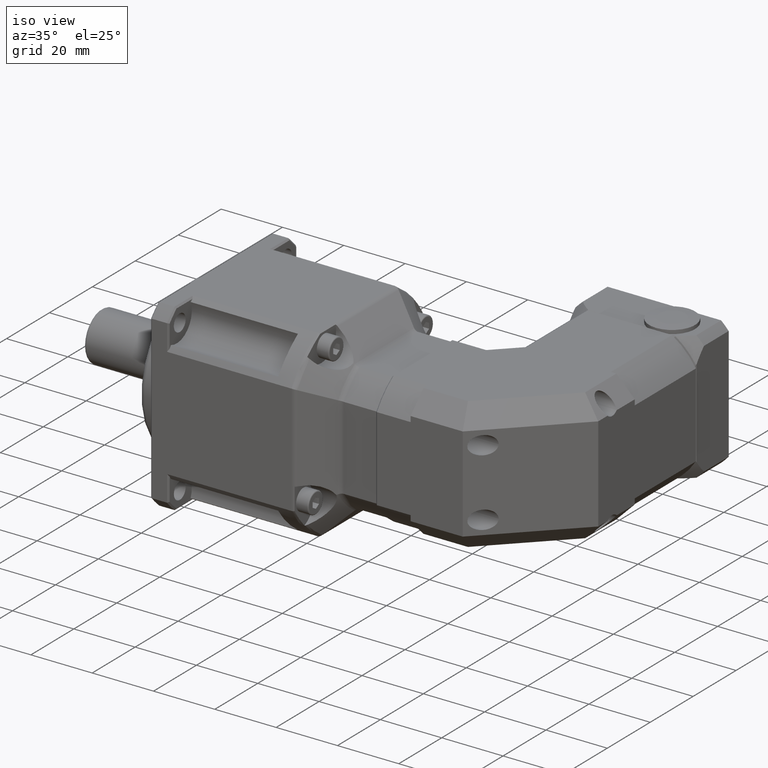
[diagram: clean part render]
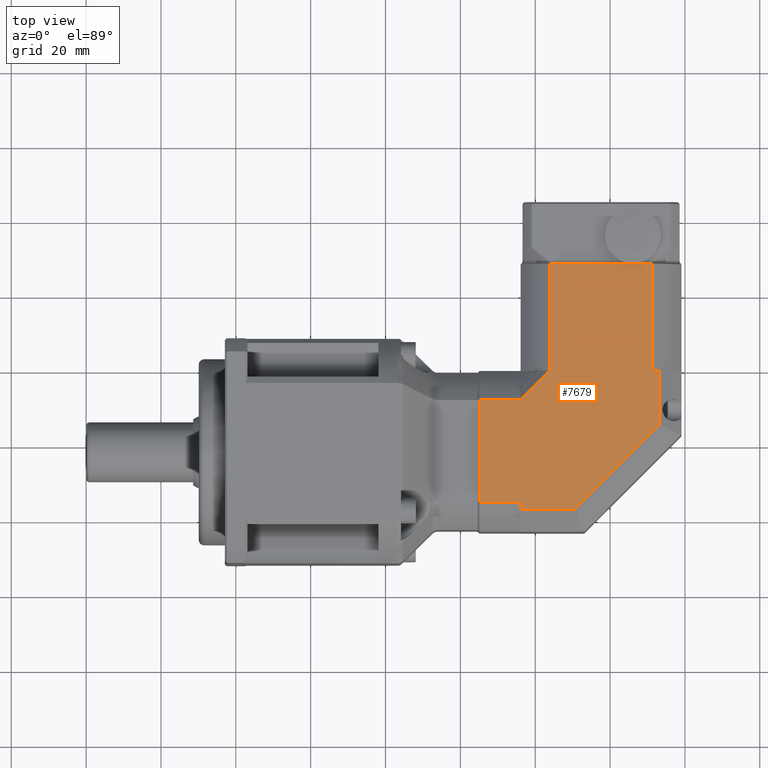
[diagram: tour spotlight — one face highlighted and labeled with its STEP entity id]
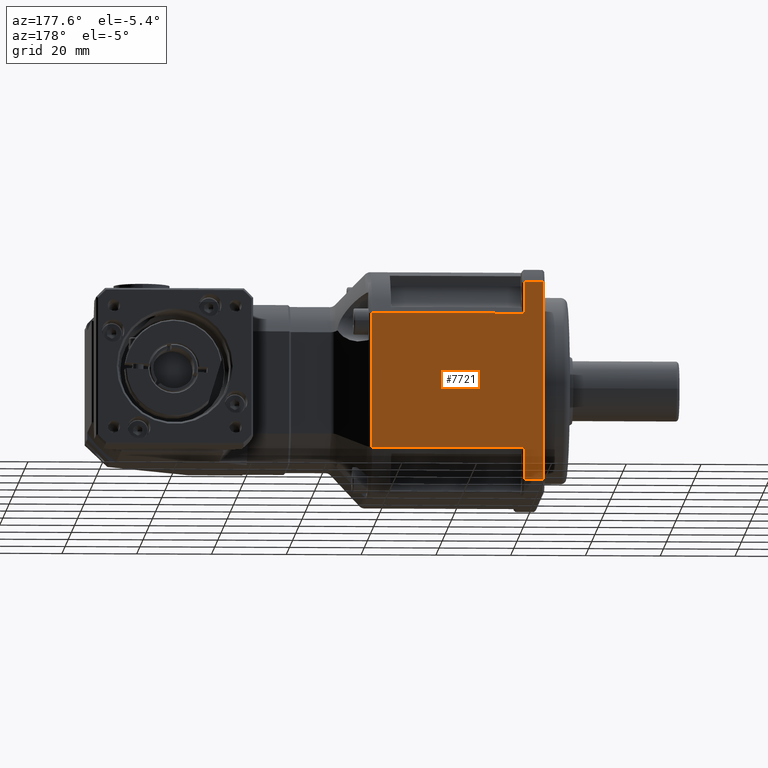
[diagram: tour spotlight — one face highlighted and labeled with its STEP entity id]
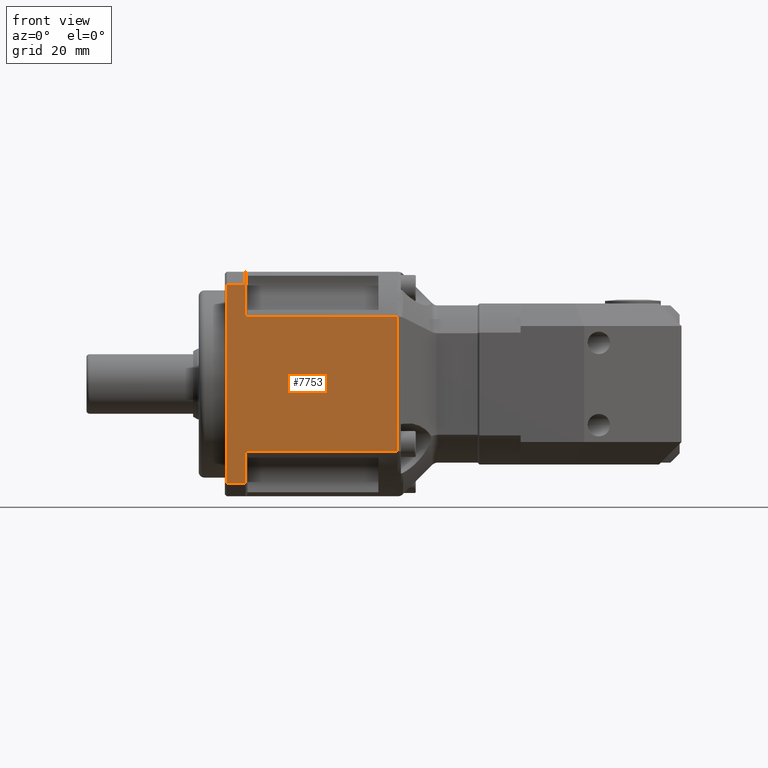
[diagram: tour spotlight — one face highlighted and labeled with its STEP entity id]
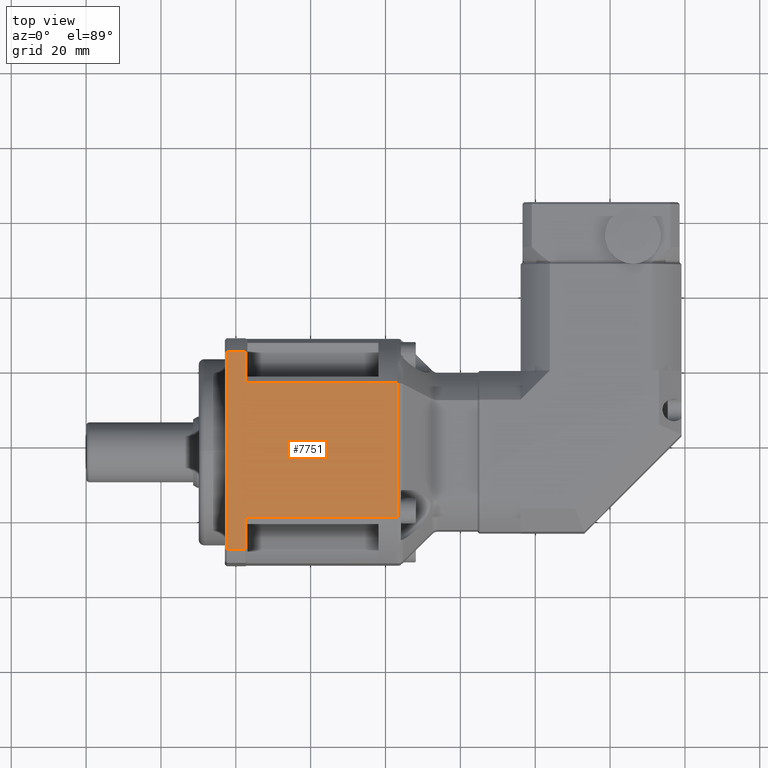
[diagram: tour spotlight — one face highlighted and labeled with its STEP entity id]
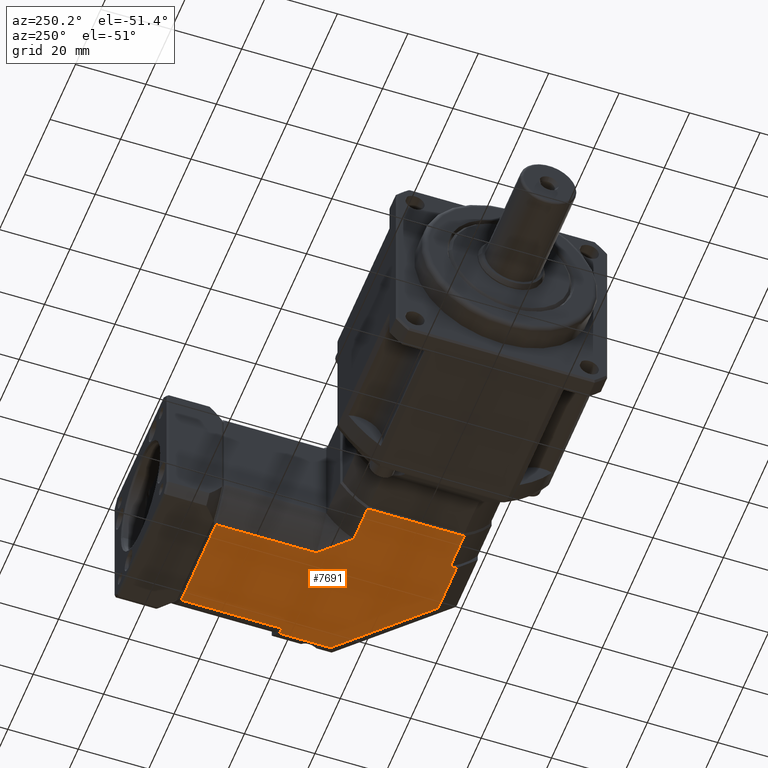
[diagram: tour spotlight — one face highlighted and labeled with its STEP entity id]
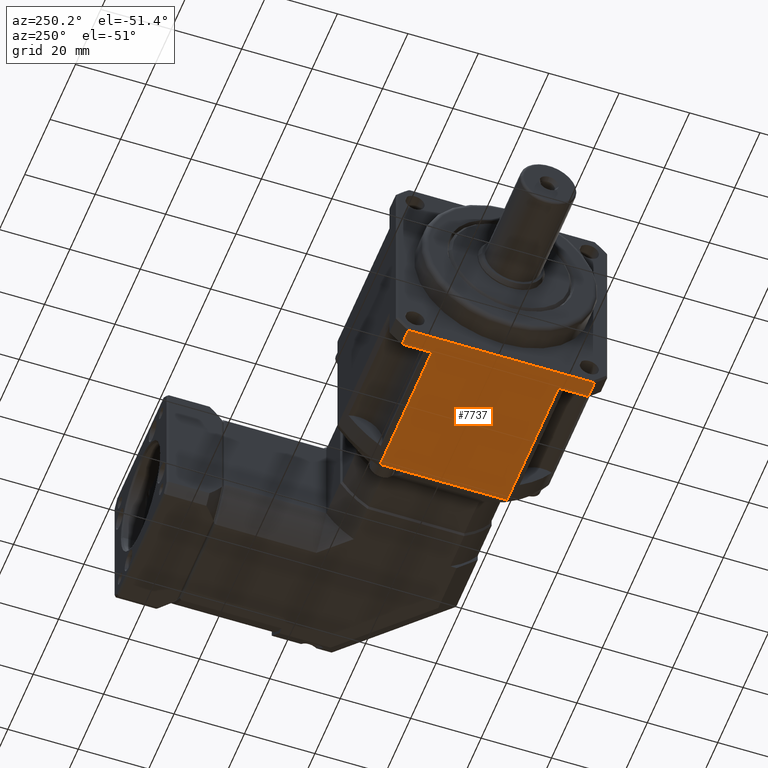
[diagram: tour spotlight — one face highlighted and labeled with its STEP entity id]
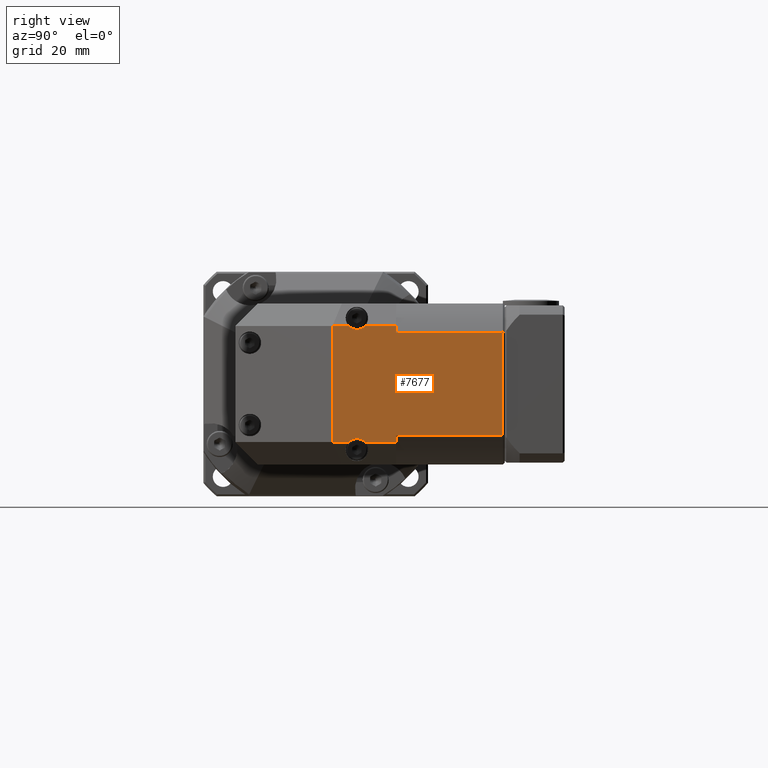
[diagram: tour spotlight — one face highlighted and labeled with its STEP entity id]
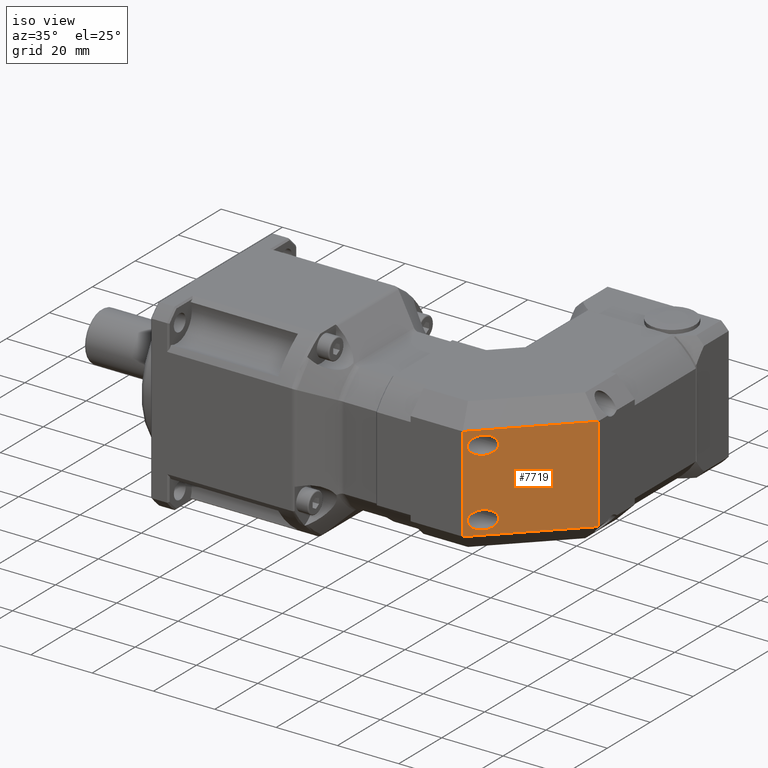
[diagram: tour spotlight — one face highlighted and labeled with its STEP entity id]
A machine part: a face-by-face anatomy tour. The part has 516 B-rep faces; the first image is the clean iso view, then the 8 largest visible faces are spotlighted one at a time (largest first), each with its STEP entity span.

Face 1 — top view, entity #7679. In plain terms, the highlighted planar face has unit normal (0, -0, 1).
Definition (entity closure, byte-faithful):
#566=LINE('',#12035,#961);
#576=LINE('',#12121,#971);
#590=LINE('',#12194,#985);
#591=LINE('',#12198,#986);
#592=LINE('',#12200,#987);
#593=LINE('',#12202,#988);
#594=LINE('',#12204,#989);
#595=LINE('',#12206,#990);
#596=LINE('',#12208,#991);
#597=LINE('',#12210,#992);
#598=LINE('',#12212,#993);
#599=LINE('',#12214,#994);
#600=LINE('',#12215,#995);
#961=VECTOR('',#9701,5.21130920089566);
#971=VECTOR('',#9785,22.2113092008911);
#985=VECTOR('',#9833,28.5);
#986=VECTOR('',#9838,28.5);
#987=VECTOR('',#9839,11.014872161302);
#988=VECTOR('',#9840,11.);
#989=VECTOR('',#9841,27.4226184016042);
#990=VECTOR('',#9842,11.);
#991=VECTOR('',#9843,1.7886907991979);
#992=VECTOR('',#9844,14.5147186257614);
#993=VECTOR('',#9845,31.7989898732233);
#994=VECTOR('',#9846,14.5147186257614);
#995=VECTOR('',#9847,1.78869079909209);
#1322=PLANE('',#8397);
#1896=FACE_OUTER_BOUND('',#2512,.T.);
#2512=EDGE_LOOP('',(#5790,#5791,#5792,#5793,#5794,#5795,#5796,#5797,#5798,
#5799,#5800,#5801,#5802));
#3534=VERTEX_POINT('',#11999);
#3546=VERTEX_POINT('',#12034);
#3577=VERTEX_POINT('',#12116);
#3595=VERTEX_POINT('',#12193);
#3596=VERTEX_POINT('',#12197);
#3597=VERTEX_POINT('',#12199);
#3598=VERTEX_POINT('',#12201);
#3599=VERTEX_POINT('',#12203);
#3600=VERTEX_POINT('',#12205);
#3601=VERTEX_POINT('',#12207);
#3602=VERTEX_POINT('',#12209);
#3603=VERTEX_POINT('',#12211);
#3604=VERTEX_POINT('',#12213);
#4349=EDGE_CURVE('',#3534,#3546,#566,.T.);
#4383=EDGE_CURVE('',#3577,#3534,#576,.T.);
#4410=EDGE_CURVE('',#3595,#3546,#590,.T.);
#4412=EDGE_CURVE('',#3577,#3596,#591,.T.);
#4413=EDGE_CURVE('',#3596,#3597,#592,.T.);
#4414=EDGE_CURVE('',#3597,#3598,#593,.T.);
#4415=EDGE_CURVE('',#3599,#3598,#594,.T.);
#4416=EDGE_CURVE('',#3599,#3600,#595,.T.);
#4417=EDGE_CURVE('',#3600,#3601,#596,.T.);
#4418=EDGE_CURVE('',#3602,#3601,#597,.T.);
#4419=EDGE_CURVE('',#3603,#3602,#598,.T.);
#4420=EDGE_CURVE('',#3604,#3603,#599,.T.);
#4421=EDGE_CURVE('',#3604,#3595,#600,.T.);
#5790=ORIENTED_EDGE('',*,*,#4383,.F.);
#5791=ORIENTED_EDGE('',*,*,#4412,.T.);
#5792=ORIENTED_EDGE('',*,*,#4413,.T.);
#5793=ORIENTED_EDGE('',*,*,#4414,.T.);
#5794=ORIENTED_EDGE('',*,*,#4415,.F.);
#5795=ORIENTED_EDGE('',*,*,#4416,.T.);
#5796=ORIENTED_EDGE('',*,*,#4417,.T.);
#5797=ORIENTED_EDGE('',*,*,#4418,.F.);
#5798=ORIENTED_EDGE('',*,*,#4419,.F.);
#5799=ORIENTED_EDGE('',*,*,#4420,.F.);
#5800=ORIENTED_EDGE('',*,*,#4421,.T.);
#5801=ORIENTED_EDGE('',*,*,#4410,.T.);
#5802=ORIENTED_EDGE('',*,*,#4349,.F.);
#7679=ADVANCED_FACE('',(#1896),#1322,.T.);
#8397=AXIS2_PLACEMENT_3D('',#12196,#9836,#9837);
#9701=DIRECTION('',(1.,7.02824524377793E-16,-7.15864935837998E-17));
#9785=DIRECTION('',(1.,7.02824524377793E-16,-7.15864935837998E-17));
#9833=DIRECTION('',(-7.02824524377793E-16,1.,7.4313826553568E-16));
#9836=DIRECTION('center_axis',(7.15864935838003E-17,-6.93280615672802E-16,
1.));
#9837=DIRECTION('ref_axis',(7.105427357601E-16,-1.,-7.105427357601E-16));
#9838=DIRECTION('',(7.02824524377793E-16,-1.,-7.4313826553568E-16));
#9839=DIRECTION('',(-0.707106781183066,-0.70710678119003,-3.66576573337404E-16));
#9840=DIRECTION('',(-1.,-7.02824524377793E-16,7.15864935837998E-17));
#9841=DIRECTION('',(-7.02824524377793E-16,1.,6.93280615672802E-16));
#9842=DIRECTION('',(1.,7.02824524377793E-16,-7.15864935837998E-17));
#9843=DIRECTION('',(7.02824524377793E-16,-1.,-6.93280615672802E-16));
#9844=DIRECTION('',(-1.,-7.02824524377793E-16,7.15864935837998E-17));
#9845=DIRECTION('',(-0.707106781186547,-0.707106781186548,-4.39604129552951E-16));
#9846=DIRECTION('',(7.02824524377793E-16,-1.,-6.93280615672802E-16));
#9847=DIRECTION('',(-1.,-7.02824524377793E-16,7.15864935837998E-17));
#11999=CARTESIAN_POINT('',(6.09576400551855,68.2695502360663,-22.674886812696));
#12034=CARTESIAN_POINT('',(11.3070732064142,68.2695502360663,-22.674886812696));
#12035=CARTESIAN_POINT('',(-18.9042359944864,68.2695502360663,-22.674886812696));
#12116=CARTESIAN_POINT('',(-16.1155451953725,68.2695502360663,-22.674886812696));
#12121=CARTESIAN_POINT('',(-18.9042359944864,68.2695502360663,-22.674886812696));
#12193=CARTESIAN_POINT('',(11.3070732064142,39.7695502360663,-22.6748868126961));
#12194=CARTESIAN_POINT('',(11.3070732064142,68.7695502360663,-22.674886812696));
#12196=CARTESIAN_POINT('Origin',(-35.4042359944937,39.7695502360663,-22.6748868126961));
#12197=CARTESIAN_POINT('',(-16.1155451953725,39.7695502360663,-22.6748868126961));
#12198=CARTESIAN_POINT('',(-16.1155451953725,68.7695502360663,-22.674886812696));
#12199=CARTESIAN_POINT('',(-23.9042359944937,31.9808594368684,-22.6748868126961));
#12200=CARTESIAN_POINT('',(-16.1155451953725,39.7695502360663,-22.6748868126961));
#12201=CARTESIAN_POINT('',(-34.9042359944937,31.9808594368684,-22.6748868126961));
#12202=CARTESIAN_POINT('',(-35.4042359944937,31.9808594368684,-22.6748868126961));
#12203=CARTESIAN_POINT('',(-34.9042359944937,4.55824103526417,-22.6748868126961));
#12204=CARTESIAN_POINT('',(-34.9042359944937,29.0195502360663,-22.6748868126961));
#12205=CARTESIAN_POINT('',(-23.9042359944937,4.55824103526418,-22.6748868126961));
#12206=CARTESIAN_POINT('',(-35.4042359944937,4.55824103526417,-22.6748868126961));
#12207=CARTESIAN_POINT('',(-23.9042359944937,2.76955023606628,-22.6748868126961));
#12208=CARTESIAN_POINT('',(-23.9042359944937,29.0195502360663,-22.6748868126961));
#12209=CARTESIAN_POINT('',(-9.38951736873221,2.76955023606629,-22.6748868126961));
#12210=CARTESIAN_POINT('',(-35.4042359944937,2.76955023606628,-22.6748868126961));
#12211=CARTESIAN_POINT('',(13.0957640055063,25.2548316103049,-22.6748868126961));
#12212=CARTESIAN_POINT('',(-1.02187668161294,11.1371909231856,-22.6748868126961));
#12213=CARTESIAN_POINT('',(13.0957640055063,39.7695502360663,-22.6748868126961));
#12214=CARTESIAN_POINT('',(13.0957640055063,29.0195502360663,-22.6748868126961));
#12215=CARTESIAN_POINT('',(-18.9042359944864,39.7695502360663,-22.6748868126961));

Face 2 — auxiliary view, entity #7721. In plain terms, the highlighted planar face has unit normal (-0, 1, 0).
Definition (entity closure, byte-faithful):
#97=B_SPLINE_CURVE_WITH_KNOTS('',3,(#12438,#12439,#12440,#12441),
 .UNSPECIFIED.,.F.,.F.,(4,4),(0.225558030153082,0.234056890439266),
 .UNSPECIFIED.);
#98=B_SPLINE_CURVE_WITH_KNOTS('',3,(#12445,#12446,#12447,#12448),
 .UNSPECIFIED.,.F.,.F.,(4,4),(0.,0.00633237157397442),.UNSPECIFIED.);
#640=LINE('',#12425,#1035);
#641=LINE('',#12428,#1036);
#642=LINE('',#12430,#1037);
#643=LINE('',#12432,#1038);
#644=LINE('',#12434,#1039);
#645=LINE('',#12436,#1040);
#646=LINE('',#12443,#1041);
#647=LINE('',#12449,#1042);
#1035=VECTOR('',#10017,5.);
#1036=VECTOR('',#10020,8.42975673332595);
#1037=VECTOR('',#10021,52.9150262212918);
#1038=VECTOR('',#10022,5.);
#1039=VECTOR('',#10023,8.42975673332595);
#1040=VECTOR('',#10024,40.6085212039556);
#1041=VECTOR('',#10025,36.0516524808742);
#1042=VECTOR('',#10026,40.6085212039556);
#1347=PLANE('',#8463);
#1938=FACE_OUTER_BOUND('',#2564,.T.);
#2564=EDGE_LOOP('',(#5966,#5967,#5968,#5969,#5970,#5971,#5972,#5973,#5974,
#5975));
#3643=VERTEX_POINT('',#12419);
#3645=VERTEX_POINT('',#12423);
#3646=VERTEX_POINT('',#12427);
#3647=VERTEX_POINT('',#12429);
#3648=VERTEX_POINT('',#12431);
#3649=VERTEX_POINT('',#12433);
#3650=VERTEX_POINT('',#12435);
#3651=VERTEX_POINT('',#12437);
#3652=VERTEX_POINT('',#12442);
#3653=VERTEX_POINT('',#12444);
#4495=EDGE_CURVE('',#3643,#3645,#640,.T.);
#4496=EDGE_CURVE('',#3643,#3646,#641,.T.);
#4497=EDGE_CURVE('',#3647,#3645,#642,.T.);
#4498=EDGE_CURVE('',#3647,#3648,#643,.T.);
#4499=EDGE_CURVE('',#3649,#3648,#644,.T.);
#4500=EDGE_CURVE('',#3649,#3650,#645,.T.);
#4501=EDGE_CURVE('',#3651,#3650,#97,.T.);
#4502=EDGE_CURVE('',#3652,#3651,#646,.T.);
#4503=EDGE_CURVE('',#3653,#3652,#98,.T.);
#4504=EDGE_CURVE('',#3653,#3646,#647,.T.);
#5966=ORIENTED_EDGE('',*,*,#4496,.F.);
#5967=ORIENTED_EDGE('',*,*,#4495,.T.);
#5968=ORIENTED_EDGE('',*,*,#4497,.F.);
#5969=ORIENTED_EDGE('',*,*,#4498,.T.);
#5970=ORIENTED_EDGE('',*,*,#4499,.F.);
#5971=ORIENTED_EDGE('',*,*,#4500,.T.);
#5972=ORIENTED_EDGE('',*,*,#4501,.F.);
#5973=ORIENTED_EDGE('',*,*,#4502,.F.);
#5974=ORIENTED_EDGE('',*,*,#4503,.F.);
#5975=ORIENTED_EDGE('',*,*,#4504,.T.);
#7721=ADVANCED_FACE('',(#1938),#1347,.T.);
#8463=AXIS2_PLACEMENT_3D('',#12426,#10018,#10019);
#10017=DIRECTION('',(-1.,-5.87515604742735E-16,1.08949767224559E-15));
#10018=DIRECTION('center_axis',(-5.87515604742732E-16,1.,2.65937231094281E-15));
#10019=DIRECTION('ref_axis',(-1.4210854715202E-15,2.8421709430404E-15,-1.));
#10020=DIRECTION('',(1.08949767224559E-15,-2.65937231094281E-15,1.));
#10021=DIRECTION('',(-1.08949767224559E-15,2.65937231094281E-15,-1.));
#10022=DIRECTION('',(1.,5.87515604742735E-16,-1.08949767224559E-15));
#10023=DIRECTION('',(1.08949767224559E-15,-2.65937231094281E-15,1.));
#10024=DIRECTION('',(1.,5.87515604742735E-16,-1.08949767224559E-15));
#10025=DIRECTION('',(2.36403970000257E-15,-1.93739700208676E-15,1.));
#10026=DIRECTION('',(-1.,-5.87515604742735E-16,1.08949767224559E-15));
#12419=CARTESIAN_POINT('',(-97.4042359944936,48.2695502360663,-70.6323999233418));
#12423=CARTESIAN_POINT('',(-102.404235994494,48.2695502360663,-70.6323999233418));
#12425=CARTESIAN_POINT('',(-61.9042359944936,48.2695502360663,-70.6323999233419));
#12426=CARTESIAN_POINT('Origin',(-61.9042359944935,48.2695502360662,-14.174886812696));
#12427=CARTESIAN_POINT('',(-97.4042359944935,48.2695502360663,-62.2026431900159));
#12428=CARTESIAN_POINT('',(-97.4042359944935,48.2695502360662,-29.1748868126959));
#12429=CARTESIAN_POINT('',(-102.404235994494,48.2695502360662,-17.71737370205));
#12430=CARTESIAN_POINT('',(-102.404235994494,48.2695502360662,-29.1748868126959));
#12431=CARTESIAN_POINT('',(-97.4042359944935,48.2695502360662,-17.71737370205));
#12432=CARTESIAN_POINT('',(-61.9042359944935,48.2695502360662,-17.7173737020501));
#12433=CARTESIAN_POINT('',(-97.4042359944935,48.2695502360662,-26.147130435376));
#12434=CARTESIAN_POINT('',(-97.4042359944935,48.2695502360662,-29.1748868126959));
#12435=CARTESIAN_POINT('',(-56.795714790538,48.2695502360663,-26.147130435376));
#12436=CARTESIAN_POINT('',(-61.9042359944935,48.2695502360662,-26.147130435376));
#12437=CARTESIAN_POINT('',(-56.7326631557635,48.2695502360663,-26.1490605700221));
#12438=CARTESIAN_POINT('Ctrl Pts',(-56.7326809839462,48.2695071724977,-26.1490863443273));
#12439=CARTESIAN_POINT('Ctrl Pts',(-56.7535919320975,48.2695348158777,-26.1477889726047));
#12440=CARTESIAN_POINT('Ctrl Pts',(-56.7746057931769,48.2695501856027,-26.1471304331838));
#12441=CARTESIAN_POINT('Ctrl Pts',(-56.795714790542,48.2695502048075,-26.1471304635546));
#12442=CARTESIAN_POINT('',(-56.7326631192399,48.2695502360663,-62.2007130508963));
#12443=CARTESIAN_POINT('',(-56.7326631192399,48.2695502360663,-50.161008624036));
#12444=CARTESIAN_POINT('',(-56.7957147905381,48.2695502360663,-62.2026431900159));
#12445=CARTESIAN_POINT('Ctrl Pts',(-56.7957147905439,48.2695501900795,-62.2026431486121));
#12446=CARTESIAN_POINT('Ctrl Pts',(-56.7746081157208,48.2695501668047,-62.2026431854299));
#12447=CARTESIAN_POINT('Ctrl Pts',(-56.753594240611,48.2695347683725,-62.2019848440975));
#12448=CARTESIAN_POINT('Ctrl Pts',(-56.7326809476477,48.2695071488212,-62.2006872840629));
#12449=CARTESIAN_POINT('',(-61.9042359944935,48.2695502360663,-62.2026431900159));

Face 3 — front view, entity #7753. In plain terms, the highlighted planar face has unit normal (0, -1, -0).
Definition (entity closure, byte-faithful):
#117=B_SPLINE_CURVE_WITH_KNOTS('',3,(#12711,#12712,#12713,#12714),
 .UNSPECIFIED.,.F.,.F.,(4,4),(0.22555803015284,0.23405689043901),
 .UNSPECIFIED.);
#118=B_SPLINE_CURVE_WITH_KNOTS('',3,(#12717,#12718,#12719,#12720),
 .UNSPECIFIED.,.F.,.F.,(4,4),(0.,0.0063323715739746),.UNSPECIFIED.);
#651=LINE('',#12469,#1046);
#660=LINE('',#12528,#1055);
#674=LINE('',#12625,#1069);
#675=LINE('',#12638,#1070);
#683=LINE('',#12708,#1078);
#684=LINE('',#12716,#1079);
#685=LINE('',#12721,#1080);
#686=LINE('',#12722,#1081);
#1046=VECTOR('',#10044,40.6085212039556);
#1055=VECTOR('',#10087,40.6085212039556);
#1069=VECTOR('',#10177,5.);
#1070=VECTOR('',#10184,52.9150262212918);
#1078=VECTOR('',#10222,5.);
#1079=VECTOR('',#10225,36.0516524808742);
#1080=VECTOR('',#10226,8.42975673332596);
#1081=VECTOR('',#10227,8.42975673332596);
#1359=PLANE('',#8544);
#1970=FACE_OUTER_BOUND('',#2607,.T.);
#2607=EDGE_LOOP('',(#6143,#6144,#6145,#6146,#6147,#6148,#6149,#6150,#6151,
#6152));
#3661=VERTEX_POINT('',#12466);
#3662=VERTEX_POINT('',#12468);
#3682=VERTEX_POINT('',#12522);
#3683=VERTEX_POINT('',#12527);
#3715=VERTEX_POINT('',#12622);
#3716=VERTEX_POINT('',#12624);
#3717=VERTEX_POINT('',#12637);
#3724=VERTEX_POINT('',#12706);
#3725=VERTEX_POINT('',#12710);
#3726=VERTEX_POINT('',#12715);
#4513=EDGE_CURVE('',#3662,#3661,#651,.T.);
#4538=EDGE_CURVE('',#3683,#3682,#660,.T.);
#4582=EDGE_CURVE('',#3716,#3715,#674,.T.);
#4586=EDGE_CURVE('',#3716,#3717,#675,.T.);
#4607=EDGE_CURVE('',#3724,#3717,#683,.T.);
#4608=EDGE_CURVE('',#3725,#3682,#117,.T.);
#4609=EDGE_CURVE('',#3726,#3725,#684,.T.);
#4610=EDGE_CURVE('',#3662,#3726,#118,.T.);
#4611=EDGE_CURVE('',#3724,#3661,#685,.T.);
#4612=EDGE_CURVE('',#3683,#3715,#686,.T.);
#6143=ORIENTED_EDGE('',*,*,#4538,.T.);
#6144=ORIENTED_EDGE('',*,*,#4608,.F.);
#6145=ORIENTED_EDGE('',*,*,#4609,.F.);
#6146=ORIENTED_EDGE('',*,*,#4610,.F.);
#6147=ORIENTED_EDGE('',*,*,#4513,.T.);
#6148=ORIENTED_EDGE('',*,*,#4611,.F.);
#6149=ORIENTED_EDGE('',*,*,#4607,.T.);
#6150=ORIENTED_EDGE('',*,*,#4586,.F.);
#6151=ORIENTED_EDGE('',*,*,#4582,.T.);
#6152=ORIENTED_EDGE('',*,*,#4612,.F.);
#7753=ADVANCED_FACE('',(#1970),#1359,.T.);
#8544=AXIS2_PLACEMENT_3D('',#12709,#10223,#10224);
#10044=DIRECTION('',(-1.,-5.87515604742735E-16,1.08949767224559E-15));
#10087=DIRECTION('',(1.,5.87515604742735E-16,-1.08949767224559E-15));
#10177=DIRECTION('',(1.,5.87515604742735E-16,-1.08949767224559E-15));
#10184=DIRECTION('',(1.08949767224559E-15,-2.51134257432613E-15,1.));
#10222=DIRECTION('',(-1.,-5.87515604742735E-16,1.08949767224559E-15));
#10223=DIRECTION('center_axis',(5.87515604742732E-16,-1.,-2.51134257432613E-15));
#10224=DIRECTION('ref_axis',(1.4210854715202E-15,-2.48689957516035E-15,
1.));
#10225=DIRECTION('',(-2.51092986907183E-15,2.23345647532013E-15,-1.));
#10226=DIRECTION('',(-1.08949767224559E-15,2.51134257432613E-15,-1.));
#10227=DIRECTION('',(-1.08949767224559E-15,2.51134257432613E-15,-1.));
#12466=CARTESIAN_POINT('',(-97.4042359944935,-11.7304497639338,-26.1471304353761));
#12468=CARTESIAN_POINT('',(-56.795714790538,-11.7304497639338,-26.1471304353761));
#12469=CARTESIAN_POINT('',(-61.9042359944935,-11.7304497639338,-26.1471304353762));
#12522=CARTESIAN_POINT('',(-56.7957147905381,-11.7304497639337,-62.202643190016));
#12527=CARTESIAN_POINT('',(-97.4042359944935,-11.7304497639337,-62.202643190016));
#12528=CARTESIAN_POINT('',(-61.9042359944935,-11.7304497639337,-62.2026431900161));
#12622=CARTESIAN_POINT('',(-97.4042359944935,-11.7304497639337,-70.632399923342));
#12624=CARTESIAN_POINT('',(-102.404235994494,-11.7304497639337,-70.632399923342));
#12625=CARTESIAN_POINT('',(-61.9042359944935,-11.7304497639337,-70.632399923342));
#12637=CARTESIAN_POINT('',(-102.404235994493,-11.7304497639338,-17.7173737020502));
#12638=CARTESIAN_POINT('',(-102.404235994494,-11.7304497639337,-59.1748868126961));
#12706=CARTESIAN_POINT('',(-97.4042359944935,-11.7304497639338,-17.7173737020502));
#12708=CARTESIAN_POINT('',(-61.9042359944935,-11.7304497639338,-17.7173737020502));
#12709=CARTESIAN_POINT('Origin',(-61.9042359944935,-11.7304497639337,-74.1748868126961));
#12710=CARTESIAN_POINT('',(-56.7326631557636,-11.7304497639337,-62.20071305537));
#12711=CARTESIAN_POINT('Ctrl Pts',(-56.7326809839463,-11.7304067003651,
-62.2006872810648));
#12712=CARTESIAN_POINT('Ctrl Pts',(-56.7535919320976,-11.7304343437451,
-62.2019846527873));
#12713=CARTESIAN_POINT('Ctrl Pts',(-56.774605793177,-11.7304497134701,-62.2026431922082));
#12714=CARTESIAN_POINT('Ctrl Pts',(-56.7957147905421,-11.7304497326749,
-62.2026431618374));
#12715=CARTESIAN_POINT('',(-56.7326631192398,-11.7304497639338,-26.1490605744957));
#12716=CARTESIAN_POINT('',(-56.7326631192398,-11.7304497639337,-38.188765001356));
#12717=CARTESIAN_POINT('Ctrl Pts',(-56.7957147905438,-11.7304497179462,
-26.1471304767808));
#12718=CARTESIAN_POINT('Ctrl Pts',(-56.7746081157208,-11.7304496946714,
-26.147130439963));
#12719=CARTESIAN_POINT('Ctrl Pts',(-56.7535942406109,-11.7304342962392,
-26.1477887812953));
#12720=CARTESIAN_POINT('Ctrl Pts',(-56.7326809476476,-11.7304066766881,
-26.1490863413298));
#12721=CARTESIAN_POINT('',(-97.4042359944935,-11.7304497639337,-59.1748868126961));
#12722=CARTESIAN_POINT('',(-97.4042359944935,-11.7304497639337,-59.1748868126961));

Face 4 — top view, entity #7751. In plain terms, the highlighted planar face has unit normal (0, -0, 1).
Definition (entity closure, byte-faithful):
#115=B_SPLINE_CURVE_WITH_KNOTS('',3,(#12694,#12695,#12696,#12697),
 .UNSPECIFIED.,.F.,.F.,(4,4),(0.225558030152606,0.234056890438767),
 .UNSPECIFIED.);
#116=B_SPLINE_CURVE_WITH_KNOTS('',3,(#12700,#12701,#12702,#12703),
 .UNSPECIFIED.,.F.,.F.,(4,4),(0.,0.0063323715739754),.UNSPECIFIED.);
#648=LINE('',#12455,#1043);
#652=LINE('',#12476,#1047);
#655=LINE('',#12493,#1050);
#676=LINE('',#12651,#1071);
#679=LINE('',#12688,#1074);
#680=LINE('',#12692,#1075);
#681=LINE('',#12699,#1076);
#682=LINE('',#12704,#1077);
#1043=VECTOR('',#10033,5.);
#1047=VECTOR('',#10045,40.6085212039556);
#1050=VECTOR('',#10060,40.6085212039556);
#1071=VECTOR('',#10191,52.9150262212918);
#1074=VECTOR('',#10210,8.42975673332596);
#1075=VECTOR('',#10215,8.42975673332596);
#1076=VECTOR('',#10216,36.0516524808742);
#1077=VECTOR('',#10217,5.);
#1358=PLANE('',#8541);
#1968=FACE_OUTER_BOUND('',#2605,.T.);
#2605=EDGE_LOOP('',(#6129,#6130,#6131,#6132,#6133,#6134,#6135,#6136,#6137,
#6138));
#3654=VERTEX_POINT('',#12451);
#3655=VERTEX_POINT('',#12453);
#3663=VERTEX_POINT('',#12470);
#3664=VERTEX_POINT('',#12475);
#3671=VERTEX_POINT('',#12490);
#3672=VERTEX_POINT('',#12492);
#3718=VERTEX_POINT('',#12644);
#3721=VERTEX_POINT('',#12691);
#3722=VERTEX_POINT('',#12693);
#3723=VERTEX_POINT('',#12698);
#4507=EDGE_CURVE('',#3654,#3655,#648,.T.);
#4515=EDGE_CURVE('',#3664,#3663,#652,.T.);
#4523=EDGE_CURVE('',#3672,#3671,#655,.T.);
#4590=EDGE_CURVE('',#3718,#3655,#676,.T.);
#4600=EDGE_CURVE('',#3654,#3671,#679,.T.);
#4601=EDGE_CURVE('',#3664,#3721,#680,.T.);
#4602=EDGE_CURVE('',#3722,#3663,#115,.T.);
#4603=EDGE_CURVE('',#3723,#3722,#681,.T.);
#4604=EDGE_CURVE('',#3672,#3723,#116,.T.);
#4605=EDGE_CURVE('',#3718,#3721,#682,.T.);
#6129=ORIENTED_EDGE('',*,*,#4601,.F.);
#6130=ORIENTED_EDGE('',*,*,#4515,.T.);
#6131=ORIENTED_EDGE('',*,*,#4602,.F.);
#6132=ORIENTED_EDGE('',*,*,#4603,.F.);
#6133=ORIENTED_EDGE('',*,*,#4604,.F.);
#6134=ORIENTED_EDGE('',*,*,#4523,.T.);
#6135=ORIENTED_EDGE('',*,*,#4600,.F.);
#6136=ORIENTED_EDGE('',*,*,#4507,.T.);
#6137=ORIENTED_EDGE('',*,*,#4590,.F.);
#6138=ORIENTED_EDGE('',*,*,#4605,.T.);
#7751=ADVANCED_FACE('',(#1968),#1358,.T.);
#8541=AXIS2_PLACEMENT_3D('',#12690,#10213,#10214);
#10033=DIRECTION('',(-1.,-5.87515604742735E-16,1.08949767224559E-15));
#10045=DIRECTION('',(1.,5.87515604742735E-16,-1.08949767224559E-15));
#10060=DIRECTION('',(-1.,-5.87515604742735E-16,1.08949767224559E-15));
#10191=DIRECTION('',(-5.87515604742732E-16,1.,2.58535744263447E-15));
#10210=DIRECTION('',(5.87515604742732E-16,-1.,-2.58535744263447E-15));
#10213=DIRECTION('center_axis',(1.08949767224559E-15,-2.58535744263447E-15,
1.));
#10214=DIRECTION('ref_axis',(-7.105427357601E-16,1.,2.66453525910038E-15));
#10215=DIRECTION('',(5.87515604742732E-16,-1.,-2.58535744263447E-15));
#10216=DIRECTION('',(1.03196878897668E-16,-1.,-1.78936726547007E-15));
#10217=DIRECTION('',(1.,5.87515604742735E-16,-1.08949767224559E-15));
#12451=CARTESIAN_POINT('',(-97.4042359944935,44.7270633467121,-14.1748868126959));
#12453=CARTESIAN_POINT('',(-102.404235994494,44.7270633467121,-14.1748868126959));
#12455=CARTESIAN_POINT('',(-61.9042359944935,44.7270633467121,-14.174886812696));
#12470=CARTESIAN_POINT('',(-56.795714790538,0.241793858746298,-14.174886812696));
#12475=CARTESIAN_POINT('',(-97.4042359944935,0.241793858746235,-14.174886812696));
#12476=CARTESIAN_POINT('',(-61.9042359944935,0.24179385874626,-14.1748868126961));
#12490=CARTESIAN_POINT('',(-97.4042359944935,36.2973066133861,-14.1748868126959));
#12492=CARTESIAN_POINT('',(-56.795714790538,36.2973066133862,-14.174886812696));
#12493=CARTESIAN_POINT('',(-61.9042359944935,36.2973066133861,-14.174886812696));
#12644=CARTESIAN_POINT('',(-102.404235994493,-8.18796287457973,-14.1748868126961));
#12651=CARTESIAN_POINT('',(-102.404235994493,3.26955023606617,-14.174886812696));
#12688=CARTESIAN_POINT('',(-97.4042359944935,3.26955023606617,-14.174886812696));
#12690=CARTESIAN_POINT('Origin',(-61.9042359944935,-11.7304497639338,-14.1748868126961));
#12691=CARTESIAN_POINT('',(-97.4042359944935,-8.18796287457973,-14.1748868126961));
#12692=CARTESIAN_POINT('',(-97.4042359944935,3.26955023606617,-14.174886812696));
#12693=CARTESIAN_POINT('',(-56.7326631557635,0.243723993392344,-14.174886812696));
#12694=CARTESIAN_POINT('Ctrl Pts',(-56.7326809839462,0.243749767697564,
-14.1749298762646));
#12695=CARTESIAN_POINT('Ctrl Pts',(-56.7535919320974,0.242452395975019,
-14.1749022328846));
#12696=CARTESIAN_POINT('Ctrl Pts',(-56.7746057931769,0.241793856554095,
-14.1748868631596));
#12697=CARTESIAN_POINT('Ctrl Pts',(-56.7957147905419,0.241793886924915,
-14.1748868439548));
#12698=CARTESIAN_POINT('',(-56.7326631192398,36.2953764742666,-14.174886812696));
#12699=CARTESIAN_POINT('',(-56.7326631192398,24.2556720474063,-14.174886812696));
#12700=CARTESIAN_POINT('Ctrl Pts',(-56.7957147905438,36.2973065719815,-14.1748868586835));
#12701=CARTESIAN_POINT('Ctrl Pts',(-56.7746081157207,36.2973066087993,-14.1748868819583));
#12702=CARTESIAN_POINT('Ctrl Pts',(-56.7535942406109,36.296648267467,-14.1749022803905));
#12703=CARTESIAN_POINT('Ctrl Pts',(-56.7326809476476,36.2953507074325,-14.1749298999416));
#12704=CARTESIAN_POINT('',(-61.9042359944935,-8.1879628745797,-14.1748868126961));

Face 5 — auxiliary view, entity #7691. In plain terms, the highlighted planar face has unit normal (-0, 0, -1).
Definition (entity closure, byte-faithful):
#578=LINE('',#12149,#973);
#581=LINE('',#12171,#976);
#606=LINE('',#12261,#1001);
#615=LINE('',#12303,#1010);
#616=LINE('',#12307,#1011);
#617=LINE('',#12309,#1012);
#618=LINE('',#12311,#1013);
#619=LINE('',#12313,#1014);
#620=LINE('',#12314,#1015);
#621=LINE('',#12316,#1016);
#622=LINE('',#12318,#1017);
#623=LINE('',#12319,#1018);
#973=VECTOR('',#9799,27.4226184014217);
#976=VECTOR('',#9816,28.5);
#1001=VECTOR('',#9861,27.4226184016042);
#1010=VECTOR('',#9902,11.);
#1011=VECTOR('',#9907,1.78869079927461);
#1012=VECTOR('',#9908,14.5147186257614);
#1013=VECTOR('',#9909,31.7989898732233);
#1014=VECTOR('',#9910,14.5147186257614);
#1015=VECTOR('',#9911,1.78869079919789);
#1016=VECTOR('',#9912,11.);
#1017=VECTOR('',#9913,11.014872161431);
#1018=VECTOR('',#9914,28.5);
#1328=PLANE('',#8419);
#1908=FACE_OUTER_BOUND('',#2524,.T.);
#2524=EDGE_LOOP('',(#5851,#5852,#5853,#5854,#5855,#5856,#5857,#5858,#5859,
#5860,#5861,#5862));
#3580=VERTEX_POINT('',#12137);
#3581=VERTEX_POINT('',#12144);
#3585=VERTEX_POINT('',#12169);
#3615=VERTEX_POINT('',#12259);
#3616=VERTEX_POINT('',#12260);
#3625=VERTEX_POINT('',#12302);
#3626=VERTEX_POINT('',#12306);
#3627=VERTEX_POINT('',#12308);
#3628=VERTEX_POINT('',#12310);
#3629=VERTEX_POINT('',#12312);
#3630=VERTEX_POINT('',#12315);
#3631=VERTEX_POINT('',#12317);
#4391=EDGE_CURVE('',#3581,#3580,#578,.T.);
#4399=EDGE_CURVE('',#3581,#3585,#581,.T.);
#4433=EDGE_CURVE('',#3615,#3616,#606,.T.);
#4453=EDGE_CURVE('',#3625,#3616,#615,.T.);
#4455=EDGE_CURVE('',#3585,#3626,#616,.T.);
#4456=EDGE_CURVE('',#3627,#3626,#617,.T.);
#4457=EDGE_CURVE('',#3628,#3627,#618,.T.);
#4458=EDGE_CURVE('',#3629,#3628,#619,.T.);
#4459=EDGE_CURVE('',#3629,#3625,#620,.T.);
#4460=EDGE_CURVE('',#3615,#3630,#621,.T.);
#4461=EDGE_CURVE('',#3630,#3631,#622,.T.);
#4462=EDGE_CURVE('',#3631,#3580,#623,.T.);
#5851=ORIENTED_EDGE('',*,*,#4391,.F.);
#5852=ORIENTED_EDGE('',*,*,#4399,.T.);
#5853=ORIENTED_EDGE('',*,*,#4455,.T.);
#5854=ORIENTED_EDGE('',*,*,#4456,.F.);
#5855=ORIENTED_EDGE('',*,*,#4457,.F.);
#5856=ORIENTED_EDGE('',*,*,#4458,.F.);
#5857=ORIENTED_EDGE('',*,*,#4459,.T.);
#5858=ORIENTED_EDGE('',*,*,#4453,.T.);
#5859=ORIENTED_EDGE('',*,*,#4433,.F.);
#5860=ORIENTED_EDGE('',*,*,#4460,.T.);
#5861=ORIENTED_EDGE('',*,*,#4461,.T.);
#5862=ORIENTED_EDGE('',*,*,#4462,.T.);
#7691=ADVANCED_FACE('',(#1908),#1328,.T.);
#8419=AXIS2_PLACEMENT_3D('',#12305,#9905,#9906);
#9799=DIRECTION('',(-1.,-7.02824524377793E-16,7.15864935837998E-17));
#9816=DIRECTION('',(7.02824524377793E-16,-1.,-7.4313826553568E-16));
#9861=DIRECTION('',(7.02824524377793E-16,-1.,-5.90004055242555E-16));
#9902=DIRECTION('',(-1.,-7.02824524377793E-16,7.15864935837998E-17));
#9905=DIRECTION('center_axis',(-7.15864935838003E-17,5.90004055242555E-16,
-1.));
#9906=DIRECTION('ref_axis',(-7.105427357601E-16,1.,0.));
#9907=DIRECTION('',(1.,7.02824524377793E-16,-7.15864935837998E-17));
#9908=DIRECTION('',(-7.02824524377793E-16,1.,5.90004055242555E-16));
#9909=DIRECTION('',(0.707106781186547,0.707106781186548,3.66576573335101E-16));
#9910=DIRECTION('',(1.,7.02824524377793E-16,-7.15864935837998E-17));
#9911=DIRECTION('',(-7.02824524377793E-16,1.,5.90004055242555E-16));
#9912=DIRECTION('',(1.,7.02824524377793E-16,-7.15864935837998E-17));
#9913=DIRECTION('',(0.70710678119135,0.707106781181745,-4.39768163750105E-16));
#9914=DIRECTION('',(-7.02824524377793E-16,1.,7.4313826553568E-16));
#12137=CARTESIAN_POINT('',(-16.11554519519,68.2695502360663,-65.674886812696));
#12144=CARTESIAN_POINT('',(11.3070732062317,68.2695502360664,-65.674886812696));
#12149=CARTESIAN_POINT('',(-18.9042359944864,68.2695502360663,-65.674886812696));
#12169=CARTESIAN_POINT('',(11.3070732062317,39.7695502360663,-65.6748868126961));
#12171=CARTESIAN_POINT('',(11.3070732062317,68.7695502360663,-65.674886812696));
#12259=CARTESIAN_POINT('',(-34.9042359944937,31.9808594368684,-65.6748868126961));
#12260=CARTESIAN_POINT('',(-34.9042359944937,4.5582410352642,-65.6748868126961));
#12261=CARTESIAN_POINT('',(-34.9042359944937,7.51955023606631,-65.6748868126961));
#12302=CARTESIAN_POINT('',(-23.9042359944937,4.55824103526421,-65.6748868126961));
#12303=CARTESIAN_POINT('',(-35.4042359944937,4.5582410352642,-65.6748868126961));
#12305=CARTESIAN_POINT('Origin',(-35.4042359944937,-3.23044976393369,-65.6748868126961));
#12306=CARTESIAN_POINT('',(13.0957640055063,39.7695502360663,-65.6748868126961));
#12307=CARTESIAN_POINT('',(-18.9042359944864,39.7695502360663,-65.6748868126961));
#12308=CARTESIAN_POINT('',(13.0957640055063,25.2548316103049,-65.6748868126961));
#12309=CARTESIAN_POINT('',(13.0957640055063,7.51955023606634,-65.6748868126961));
#12310=CARTESIAN_POINT('',(-9.38951736873222,2.76955023606633,-65.6748868126961));
#12311=CARTESIAN_POINT('',(-11.7718766816129,0.387190923185607,-65.6748868126961));
#12312=CARTESIAN_POINT('',(-23.9042359944937,2.76955023606632,-65.6748868126961));
#12313=CARTESIAN_POINT('',(-35.4042359944937,2.76955023606631,-65.6748868126961));
#12314=CARTESIAN_POINT('',(-23.9042359944937,7.51955023606631,-65.6748868126961));
#12315=CARTESIAN_POINT('',(-23.9042359944937,31.9808594368684,-65.6748868126961));
#12316=CARTESIAN_POINT('',(-35.4042359944937,31.9808594368684,-65.6748868126961));
#12317=CARTESIAN_POINT('',(-16.11554519519,39.7695502360663,-65.6748868126961));
#12318=CARTESIAN_POINT('',(-16.11554519519,39.7695502360663,-65.6748868126961));
#12319=CARTESIAN_POINT('',(-16.11554519519,68.7695502360663,-65.674886812696));

Face 6 — auxiliary view, entity #7737. In plain terms, the highlighted planar face has unit normal (-0, 0, -1).
Definition (entity closure, byte-faithful):
#103=B_SPLINE_CURVE_WITH_KNOTS('',3,(#12611,#12612,#12613,#12614),
 .UNSPECIFIED.,.F.,.F.,(4,4),(0.0530396573658638,0.0593692847379244),
 .UNSPECIFIED.);
#104=B_SPLINE_CURVE_WITH_KNOTS('',3,(#12617,#12618,#12619,#12620),
 .UNSPECIFIED.,.F.,.F.,(4,4),(4.33680868994202E-19,0.00633237157397487),
 .UNSPECIFIED.);
#639=LINE('',#12422,#1034);
#659=LINE('',#12521,#1054);
#663=LINE('',#12549,#1058);
#669=LINE('',#12605,#1064);
#670=LINE('',#12607,#1065);
#671=LINE('',#12608,#1066);
#672=LINE('',#12609,#1067);
#673=LINE('',#12616,#1068);
#1034=VECTOR('',#10014,5.);
#1054=VECTOR('',#10086,40.6085212039556);
#1058=VECTOR('',#10102,40.6085212039556);
#1064=VECTOR('',#10168,8.42975673332594);
#1065=VECTOR('',#10169,5.);
#1066=VECTOR('',#10170,52.9150262212918);
#1067=VECTOR('',#10171,8.42975673332595);
#1068=VECTOR('',#10172,36.0516524764007);
#1350=PLANE('',#8523);
#1954=FACE_OUTER_BOUND('',#2590,.T.);
#2590=EDGE_LOOP('',(#6064,#6065,#6066,#6067,#6068,#6069,#6070,#6071,#6072,
#6073));
#3642=VERTEX_POINT('',#12418);
#3644=VERTEX_POINT('',#12421);
#3680=VERTEX_POINT('',#12518);
#3681=VERTEX_POINT('',#12520);
#3690=VERTEX_POINT('',#12543);
#3691=VERTEX_POINT('',#12548);
#3711=VERTEX_POINT('',#12604);
#3712=VERTEX_POINT('',#12606);
#3713=VERTEX_POINT('',#12610);
#3714=VERTEX_POINT('',#12615);
#4493=EDGE_CURVE('',#3644,#3642,#639,.T.);
#4536=EDGE_CURVE('',#3681,#3680,#659,.T.);
#4547=EDGE_CURVE('',#3691,#3690,#663,.T.);
#4574=EDGE_CURVE('',#3711,#3680,#669,.T.);
#4575=EDGE_CURVE('',#3711,#3712,#670,.T.);
#4576=EDGE_CURVE('',#3644,#3712,#671,.T.);
#4577=EDGE_CURVE('',#3691,#3642,#672,.T.);
#4578=EDGE_CURVE('',#3713,#3690,#103,.T.);
#4579=EDGE_CURVE('',#3714,#3713,#673,.T.);
#4580=EDGE_CURVE('',#3681,#3714,#104,.T.);
#6064=ORIENTED_EDGE('',*,*,#4574,.F.);
#6065=ORIENTED_EDGE('',*,*,#4575,.T.);
#6066=ORIENTED_EDGE('',*,*,#4576,.F.);
#6067=ORIENTED_EDGE('',*,*,#4493,.T.);
#6068=ORIENTED_EDGE('',*,*,#4577,.F.);
#6069=ORIENTED_EDGE('',*,*,#4547,.T.);
#6070=ORIENTED_EDGE('',*,*,#4578,.F.);
#6071=ORIENTED_EDGE('',*,*,#4579,.F.);
#6072=ORIENTED_EDGE('',*,*,#4580,.F.);
#6073=ORIENTED_EDGE('',*,*,#4536,.T.);
#7737=ADVANCED_FACE('',(#1954),#1350,.T.);
#8523=AXIS2_PLACEMENT_3D('',#12603,#10166,#10167);
#10014=DIRECTION('',(1.,5.87515604742735E-16,-1.08949767224559E-15));
#10086=DIRECTION('',(-1.,-5.87515604742735E-16,1.08949767224559E-15));
#10102=DIRECTION('',(1.,5.87515604742735E-16,-1.08949767224559E-15));
#10166=DIRECTION('center_axis',(-1.08949767224559E-15,2.73338717925116E-15,
-1.));
#10167=DIRECTION('ref_axis',(7.105427357601E-16,-1.,-2.8421709430404E-15));
#10168=DIRECTION('',(-5.87515604742732E-16,1.,2.73338717925116E-15));
#10169=DIRECTION('',(-1.,-5.87515604742735E-16,1.08949767224559E-15));
#10170=DIRECTION('',(5.87515604742732E-16,-1.,-2.73338717925116E-15));
#10171=DIRECTION('',(-5.87515604742732E-16,1.,2.73338717925116E-15));
#10172=DIRECTION('',(-2.01503514126316E-16,1.,1.93739700208676E-15));
#12418=CARTESIAN_POINT('',(-97.4042359944936,44.7270633467122,-74.1748868126959));
#12421=CARTESIAN_POINT('',(-102.404235994494,44.7270633467122,-74.1748868126959));
#12422=CARTESIAN_POINT('',(-61.9042359944936,44.7270633467123,-74.174886812696));
#12518=CARTESIAN_POINT('',(-97.4042359944935,0.241793858746371,-74.174886812696));
#12520=CARTESIAN_POINT('',(-56.7957147905382,0.241793858746384,-74.174886812696));
#12521=CARTESIAN_POINT('',(-61.9042359944935,0.2417938587464,-74.1748868126961));
#12543=CARTESIAN_POINT('',(-56.7957147905382,36.2973066133863,-74.174886812696));
#12548=CARTESIAN_POINT('',(-97.4042359944936,36.2973066133863,-74.1748868126959));
#12549=CARTESIAN_POINT('',(-61.9042359944936,36.2973066133863,-74.174886812696));
#12603=CARTESIAN_POINT('Origin',(-61.9042359944936,48.2695502360664,-74.1748868126959));
#12604=CARTESIAN_POINT('',(-97.4042359944935,-8.18796287457958,-74.1748868126961));
#12605=CARTESIAN_POINT('',(-97.4042359944936,33.2695502360663,-74.174886812696));
#12606=CARTESIAN_POINT('',(-102.404235994494,-8.18796287457958,-74.1748868126961));
#12607=CARTESIAN_POINT('',(-61.9042359944935,-8.18796287457955,-74.1748868126961));
#12608=CARTESIAN_POINT('',(-102.404235994494,33.2695502360663,-74.1748868126959));
#12609=CARTESIAN_POINT('',(-97.4042359944936,33.2695502360663,-74.174886812696));
#12610=CARTESIAN_POINT('',(-56.7326631192399,36.2953764742667,-74.174886812696));
#12611=CARTESIAN_POINT('Ctrl Pts',(-56.732680947392,36.2953507000354,-74.1748437514424));
#12612=CARTESIAN_POINT('Ctrl Pts',(-56.7536157445146,36.296649868292,-74.1748712365149));
#12613=CARTESIAN_POINT('Ctrl Pts',(-56.7746296362758,36.29730661587,-74.1748867632836));
#12614=CARTESIAN_POINT('Ctrl Pts',(-56.795714790542,36.2973065859172,-74.1748867822244));
#12615=CARTESIAN_POINT('',(-56.7326631192399,0.243723997865986,-74.174886812696));
#12616=CARTESIAN_POINT('',(-56.7326631192399,12.2834284247263,-74.174886812696));
#12617=CARTESIAN_POINT('Ctrl Pts',(-56.7957147905439,0.241793900151051,
-74.1748867667085));
#12618=CARTESIAN_POINT('Ctrl Pts',(-56.7746081157209,0.241793863333256,
-74.1748867434337));
#12619=CARTESIAN_POINT('Ctrl Pts',(-56.753594240611,0.242452204665521,-74.1748713450015));
#12620=CARTESIAN_POINT('Ctrl Pts',(-56.7326809476477,0.243749764700009,
-74.1748437254504));

Face 7 — right view, entity #7677. In plain terms, the highlighted planar face has unit normal (1, 0, -0).
Definition (entity closure, byte-faithful):
#579=LINE('',#12159,#974);
#580=LINE('',#12168,#975);
#582=LINE('',#12174,#977);
#583=LINE('',#12176,#978);
#584=LINE('',#12178,#979);
#585=LINE('',#12182,#980);
#586=LINE('',#12184,#981);
#587=LINE('',#12186,#982);
#588=LINE('',#12190,#983);
#589=LINE('',#12191,#984);
#974=VECTOR('',#9806,27.4226184016498);
#975=VECTOR('',#9813,28.5);
#977=VECTOR('',#9819,28.5);
#978=VECTOR('',#9820,1.78869079911689);
#979=VECTOR('',#9821,8.35880830369417);
#980=VECTOR('',#9824,4.35045776937216);
#981=VECTOR('',#9825,31.);
#982=VECTOR('',#9826,4.35045776937216);
#983=VECTOR('',#9829,8.35880830369418);
#984=VECTOR('',#9830,1.78869079923328);
#1321=PLANE('',#8392);
#1894=FACE_OUTER_BOUND('',#2510,.T.);
#2510=EDGE_LOOP('',(#5774,#5775,#5776,#5777,#5778,#5779,#5780,#5781,#5782,
#5783,#5784,#5785));
#3094=CIRCLE('',#8393,3.);
#3095=CIRCLE('',#8394,3.);
#3582=VERTEX_POINT('',#12151);
#3583=VERTEX_POINT('',#12158);
#3584=VERTEX_POINT('',#12167);
#3586=VERTEX_POINT('',#12173);
#3587=VERTEX_POINT('',#12175);
#3588=VERTEX_POINT('',#12177);
#3589=VERTEX_POINT('',#12179);
#3590=VERTEX_POINT('',#12181);
#3591=VERTEX_POINT('',#12183);
#3592=VERTEX_POINT('',#12185);
#3593=VERTEX_POINT('',#12187);
#3594=VERTEX_POINT('',#12189);
#4394=EDGE_CURVE('',#3583,#3582,#579,.T.);
#4397=EDGE_CURVE('',#3584,#3582,#580,.T.);
#4400=EDGE_CURVE('',#3583,#3586,#582,.T.);
#4401=EDGE_CURVE('',#3586,#3587,#583,.T.);
#4402=EDGE_CURVE('',#3588,#3587,#584,.T.);
#4403=EDGE_CURVE('',#3588,#3589,#3094,.T.);
#4404=EDGE_CURVE('',#3590,#3589,#585,.T.);
#4405=EDGE_CURVE('',#3591,#3590,#586,.T.);
#4406=EDGE_CURVE('',#3592,#3591,#587,.T.);
#4407=EDGE_CURVE('',#3592,#3593,#3095,.T.);
#4408=EDGE_CURVE('',#3594,#3593,#588,.T.);
#4409=EDGE_CURVE('',#3594,#3584,#589,.T.);
#5774=ORIENTED_EDGE('',*,*,#4394,.F.);
#5775=ORIENTED_EDGE('',*,*,#4400,.T.);
#5776=ORIENTED_EDGE('',*,*,#4401,.T.);
#5777=ORIENTED_EDGE('',*,*,#4402,.F.);
#5778=ORIENTED_EDGE('',*,*,#4403,.T.);
#5779=ORIENTED_EDGE('',*,*,#4404,.F.);
#5780=ORIENTED_EDGE('',*,*,#4405,.F.);
#5781=ORIENTED_EDGE('',*,*,#4406,.F.);
#5782=ORIENTED_EDGE('',*,*,#4407,.T.);
#5783=ORIENTED_EDGE('',*,*,#4408,.F.);
#5784=ORIENTED_EDGE('',*,*,#4409,.T.);
#5785=ORIENTED_EDGE('',*,*,#4397,.T.);
#7677=ADVANCED_FACE('',(#1894),#1321,.T.);
#8392=AXIS2_PLACEMENT_3D('',#12172,#9817,#9818);
#8393=AXIS2_PLACEMENT_3D('',#12180,#9822,#9823);
#8394=AXIS2_PLACEMENT_3D('',#12188,#9827,#9828);
#9806=DIRECTION('',(-7.15864935838004E-17,7.4313826553568E-16,-1.));
#9813=DIRECTION('',(-7.02824524377793E-16,1.,7.4313826553568E-16));
#9817=DIRECTION('center_axis',(1.,7.02824524377793E-16,-7.15864935837998E-17));
#9818=DIRECTION('ref_axis',(0.,-7.105427357601E-16,1.));
#9819=DIRECTION('',(7.02824524377793E-16,-1.,-7.4313826553568E-16));
#9820=DIRECTION('',(7.15864935838004E-17,-7.4313826553568E-16,1.));
#9821=DIRECTION('',(-7.02824524377793E-16,1.,6.93280615672802E-16));
#9822=DIRECTION('center_axis',(-1.,-7.02824524377793E-16,7.15864935837998E-17));
#9823=DIRECTION('ref_axis',(-7.15864935838003E-17,5.90004055242555E-16,
-1.));
#9824=DIRECTION('',(-7.02824524377793E-16,1.,6.93280615672802E-16));
#9825=DIRECTION('',(7.15864935838004E-17,-7.96557176103049E-16,1.));
#9826=DIRECTION('',(7.02824524377793E-16,-1.,-5.90004055242555E-16));
#9827=DIRECTION('center_axis',(-1.,-7.02824524377793E-16,7.15864935837998E-17));
#9828=DIRECTION('ref_axis',(7.15864935838003E-17,-5.90004055242555E-16,
1.));
#9829=DIRECTION('',(7.02824524377793E-16,-1.,-5.90004055242555E-16));
#9830=DIRECTION('',(7.15864935838004E-17,-7.4313826553568E-16,1.));
#12151=CARTESIAN_POINT('',(19.0957640055063,68.2695502360664,-57.8861960134628));
#12158=CARTESIAN_POINT('',(19.0957640055063,68.2695502360663,-30.4635776118129));
#12159=CARTESIAN_POINT('',(19.0957640055063,68.2695502360663,-44.1748868126815));
#12167=CARTESIAN_POINT('',(19.0957640055063,39.7695502360663,-57.8861960134628));
#12168=CARTESIAN_POINT('',(19.0957640055063,68.7695502360663,-57.8861960134628));
#12172=CARTESIAN_POINT('Origin',(19.0957640055063,18.2695502360663,-44.1748868126961));
#12173=CARTESIAN_POINT('',(19.0957640055063,39.7695502360663,-30.4635776118129));
#12174=CARTESIAN_POINT('',(19.0957640055063,68.7695502360663,-30.4635776118129));
#12175=CARTESIAN_POINT('',(19.0957640055063,39.7695502360663,-28.6748868126961));
#12176=CARTESIAN_POINT('',(19.0957640055063,39.7695502360663,-44.174886812667));
#12177=CARTESIAN_POINT('',(19.0957640055063,31.4107419323721,-28.6748868126961));
#12178=CARTESIAN_POINT('',(19.0957640055063,29.0195502360663,-28.6748868126961));
#12179=CARTESIAN_POINT('',(19.0957640055063,27.1200080054385,-28.6748868126961));
#12180=CARTESIAN_POINT('Origin',(19.0957640055063,29.2653749689053,-26.5778888174502));
#12181=CARTESIAN_POINT('',(19.0957640055063,22.7695502360663,-28.6748868126961));
#12182=CARTESIAN_POINT('',(19.0957640055063,29.0195502360663,-28.6748868126961));
#12183=CARTESIAN_POINT('',(19.0957640055063,22.7695502360663,-59.6748868126961));
#12184=CARTESIAN_POINT('',(19.0957640055063,22.7695502360663,-33.4248868126961));
#12185=CARTESIAN_POINT('',(19.0957640055063,27.1200080054385,-59.6748868126961));
#12186=CARTESIAN_POINT('',(19.0957640055063,7.51955023606634,-59.6748868126961));
#12187=CARTESIAN_POINT('',(19.0957640055063,31.4107419323722,-59.6748868126961));
#12188=CARTESIAN_POINT('Origin',(19.0957640055063,29.2653749689053,-61.7718848079419));
#12189=CARTESIAN_POINT('',(19.0957640055063,39.7695502360663,-59.6748868126961));
#12190=CARTESIAN_POINT('',(19.0957640055063,7.51955023606634,-59.6748868126961));
#12191=CARTESIAN_POINT('',(19.0957640055063,39.7695502360663,-44.174886812667));

Face 8 — iso view, entity #7719. In plain terms, the highlighted planar face has unit normal (0.7071, -0.7071, -0).
Definition (entity closure, byte-faithful):
#35=ELLIPSE('',#8439,4.24264068711929,3.);
#36=ELLIPSE('',#8448,4.24264068711929,3.);
#586=LINE('',#12184,#981);
#612=LINE('',#12297,#1007);
#627=LINE('',#12364,#1022);
#633=LINE('',#12377,#1028);
#981=VECTOR('',#9825,31.);
#1007=VECTOR('',#9897,31.);
#1022=VECTOR('',#9932,36.7695526217005);
#1028=VECTOR('',#9952,36.7695526217005);
#1346=PLANE('',#8459);
#1571=FACE_BOUND('',#2561,.T.);
#1572=FACE_BOUND('',#2562,.T.);
#1936=FACE_OUTER_BOUND('',#2560,.T.);
#2560=EDGE_LOOP('',(#5956,#5957,#5958,#5959));
#2561=EDGE_LOOP('',(#5960));
#2562=EDGE_LOOP('',(#5961));
#3590=VERTEX_POINT('',#12181);
#3591=VERTEX_POINT('',#12183);
#3622=VERTEX_POINT('',#12294);
#3623=VERTEX_POINT('',#12296);
#3635=VERTEX_POINT('',#12384);
#3639=VERTEX_POINT('',#12397);
#4405=EDGE_CURVE('',#3591,#3590,#586,.T.);
#4450=EDGE_CURVE('',#3623,#3622,#612,.T.);
#4471=EDGE_CURVE('',#3623,#3590,#627,.T.);
#4478=EDGE_CURVE('',#3591,#3622,#633,.T.);
#4480=EDGE_CURVE('',#3635,#3635,#35,.T.);
#4484=EDGE_CURVE('',#3639,#3639,#36,.T.);
#5956=ORIENTED_EDGE('',*,*,#4471,.F.);
#5957=ORIENTED_EDGE('',*,*,#4450,.T.);
#5958=ORIENTED_EDGE('',*,*,#4478,.F.);
#5959=ORIENTED_EDGE('',*,*,#4405,.T.);
#5960=ORIENTED_EDGE('',*,*,#4480,.T.);
#5961=ORIENTED_EDGE('',*,*,#4484,.T.);
#7719=ADVANCED_FACE('',(#1936,#1571,#1572),#1346,.T.);
#8439=AXIS2_PLACEMENT_3D('',#12385,#9963,#9964);
#8448=AXIS2_PLACEMENT_3D('',#12398,#9981,#9982);
#8459=AXIS2_PLACEMENT_3D('',#12416,#10008,#10009);
#9825=DIRECTION('',(7.15864935838004E-17,-7.96557176103049E-16,1.));
#9897=DIRECTION('',(-7.15864935838004E-17,7.96557176103049E-16,-1.));
#9932=DIRECTION('',(0.707106781186547,0.707106781186548,4.39604129552951E-16));
#9952=DIRECTION('',(-0.707106781186547,-0.707106781186548,-3.66576573335101E-16));
#9963=DIRECTION('center_axis',(-0.707106781186548,0.707106781186547,6.13870275879745E-16));
#9964=DIRECTION('ref_axis',(-0.707106781186547,-0.707106781186548,-3.66576573335101E-16));
#9981=DIRECTION('center_axis',(-0.707106781186548,0.707106781186547,6.13870275879745E-16));
#9982=DIRECTION('ref_axis',(-0.707106781186547,-0.707106781186548,-3.66576573335101E-16));
#10008=DIRECTION('center_axis',(0.707106781186548,-0.707106781186547,-6.13870275879745E-16));
#10009=DIRECTION('ref_axis',(2.66453525910038E-16,-5.32907051820075E-16,
1.));
#12181=CARTESIAN_POINT('',(19.0957640055063,22.7695502360663,-28.6748868126961));
#12183=CARTESIAN_POINT('',(19.0957640055063,22.7695502360663,-59.6748868126961));
#12184=CARTESIAN_POINT('',(19.0957640055063,22.7695502360663,-33.4248868126961));
#12294=CARTESIAN_POINT('',(-6.90423599449365,-3.23044976393368,-59.6748868126961));
#12296=CARTESIAN_POINT('',(-6.90423599449365,-3.2304497639337,-28.6748868126961));
#12297=CARTESIAN_POINT('',(-6.90423599449365,-3.2304497639337,-33.4248868126961));
#12364=CARTESIAN_POINT('',(3.22076400550635,6.89455023606631,-28.6748868126961));
#12377=CARTESIAN_POINT('',(-7.52923599449364,-3.85544976393368,-59.6748868126961));
#12384=CARTESIAN_POINT('',(-0.00123398973949751,3.67255224082047,-33.1790620798571));
#12385=CARTESIAN_POINT('Origin',(-3.00123398973949,0.672552240820463,-33.1790620798571));
#12397=CARTESIAN_POINT('',(-0.00123398973949751,3.67255224082048,-55.1707115455351));
#12398=CARTESIAN_POINT('Origin',(-3.00123398973949,0.672552240820476,-55.1707115455351));
#12416=CARTESIAN_POINT('Origin',(6.09576400550635,9.76955023606631,-33.4248868126961));